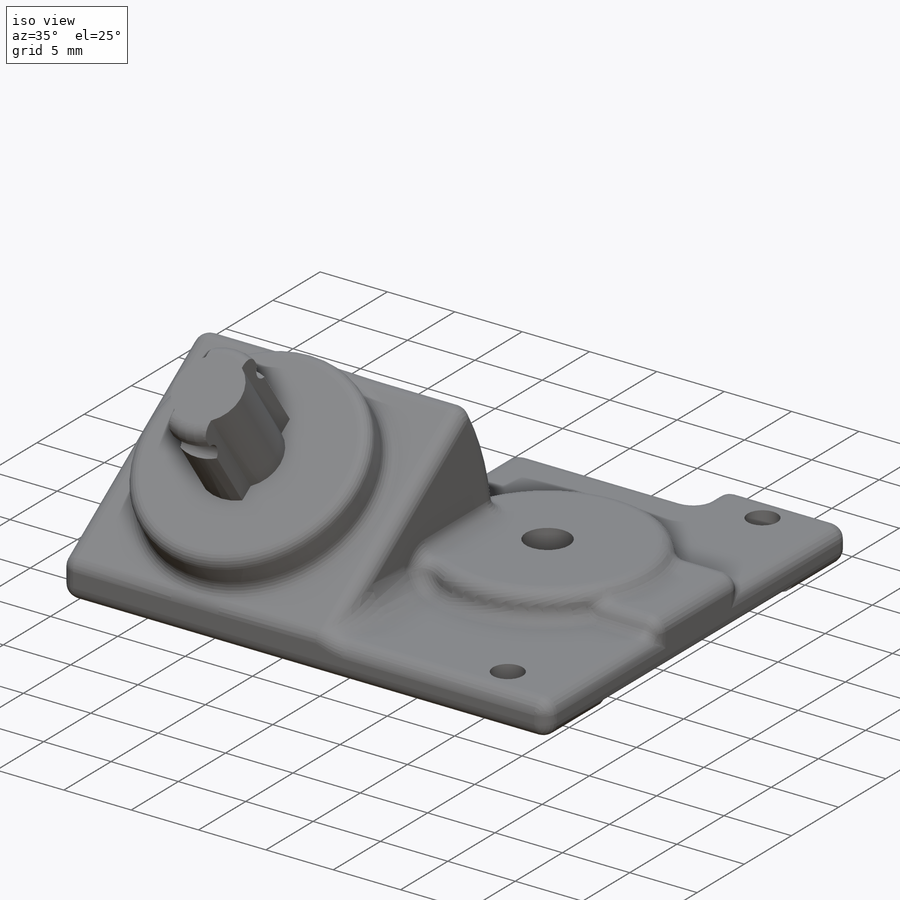
[diagram: iso view]
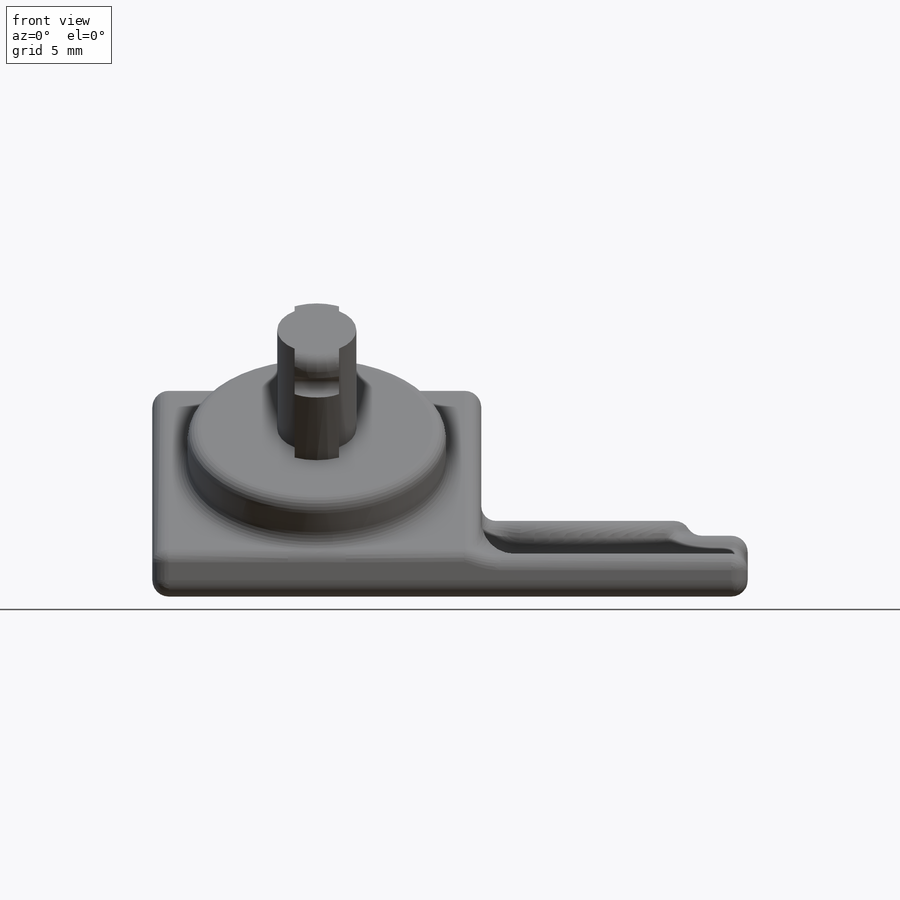
[diagram: front view]
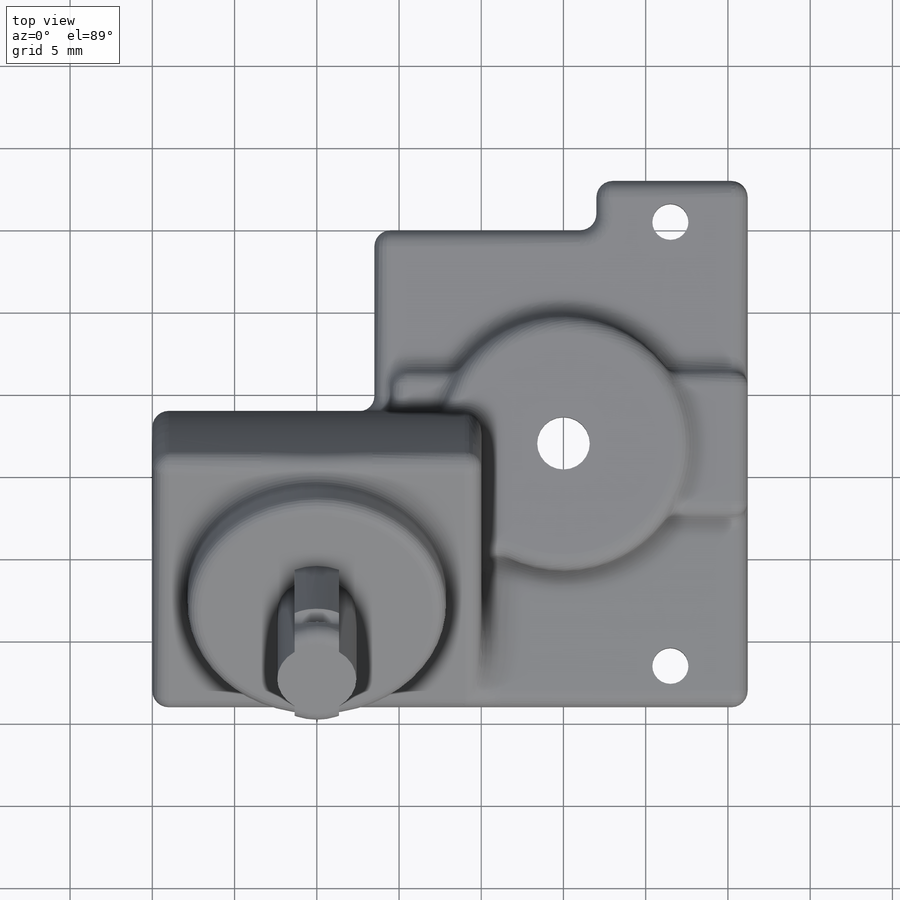
[diagram: top view]
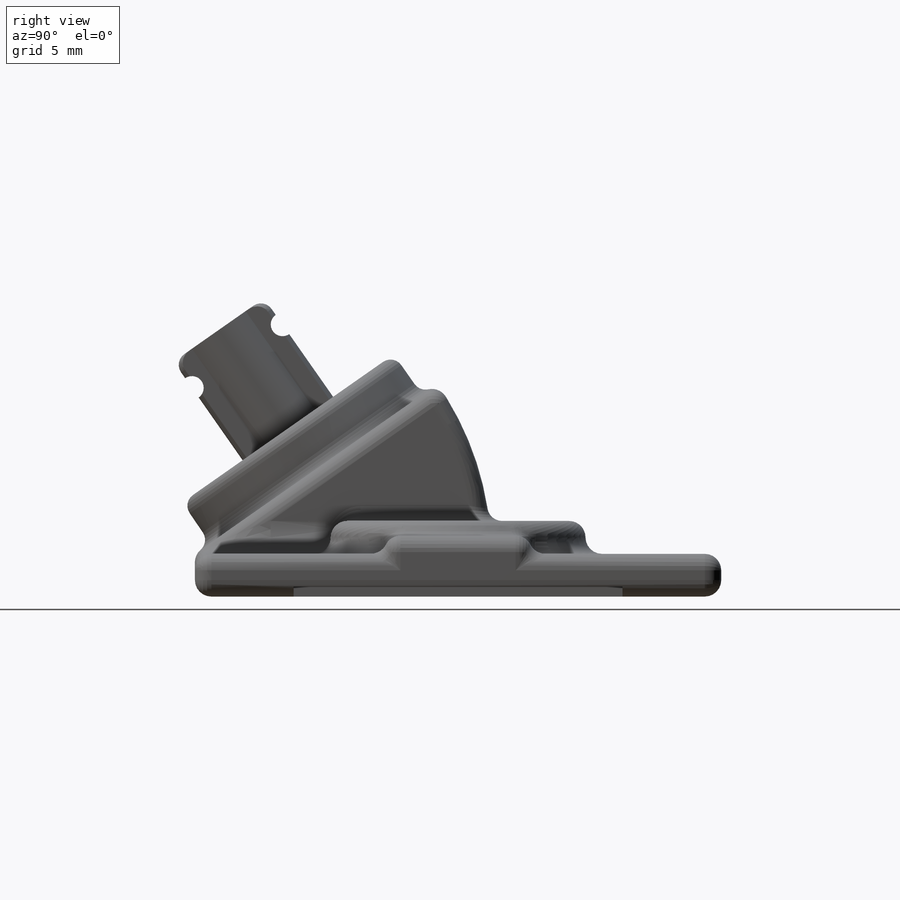
[diagram: right view]
SOLIDWORKS PART (.sldprt)
format: sldprt  version: not decoded by parser v0  size: 1,586,176 bytes
history: native  units: mm
features: sketch x14, fillet x13, extrude x7, cut_extrude x7, material x1 (+16 scaffold rows collapsed)
feature tree (58):
  scaffold x16  (default folders/planes/origin — collapsed)
  material  "Material <not specified>"
  sketch  "Sketch8"  dims[c1.D1=18.0mm c1.D2=30.0mm c2.D2=35.0deg]
  extrude  "Boss-Extrude4"  Depth=10mm
  sketch  "Sketch3"  dims[D1=15.72mm D2=9.0mm]
  extrude  "Boss-Extrude2"  Depth=3mm
  sketch  "Sketch5"  dims[c1.D1=4.81mm c1.D3=6.72mm c1.D2=2.7mm c2.D3=6.72mm]
  extrude  "Boss-Extrude3"  Depth=7.32mm
  sketch  "Sketch6"  dims[c1.D1=5.29mm c1.D2=5.37mm c2.D1=5.29mm c2.D2=5.37mm]
  cut_extrude  "Cut-Extrude2"  [1 undecoded]
  fillet  "Fillet5"  Radius=0.8mm
  sketch  "Sketch10"  dims[D1=26.2mm D2=32.0mm]
  extrude  "Boss-Extrude5"  Depth=2.6mm
  sketch  "Sketch15"  dims[D1=6.0mm D2=6.0mm D3=19.7mm]
  cut_extrude  "Cut-Extrude4"  Depth=0.6mm
  sketch  "Sketch16"  dims[D1=15.5mm D2=15.0mm]
  extrude  "Boss-Extrude8"  Depth=2mm
  sketch  "Sketch18"  dims[D1=9.0mm D2=22.0mm D3=2.0mm]
  extrude  "Boss-Extrude9"  Depth=1.1mm
  sketch  "Sketch19"  dims[D1=11.7mm]
  cut_extrude  "Cut-Extrude5"  Depth=2.4mm
  sketch  "Sketch20"  dims[D1=18.2mm D2=6.2mm]
  cut_extrude  "Cut-Extrude6"  Depth=1.1mm
  sketch  "Sketch21"  dims[D1=13.5mm D2=3.0mm D3=27.0mm]
  cut_extrude  "Cut-Extrude7"  [1 undecoded]
  sketch  "Sketch22"  dims[D1=2.2mm D2=4.7mm D3=2.5mm D4=2.5mm D5=8.0mm]
  sketch  "Sketch23"  dims[D1=7.8mm]
  extrude  "Boss-Extrude10"  Depth=0.6mm
  cut_extrude  "Cut-Extrude8"  [1 undecoded]
  sketch  "Sketch24"  dims[D1=3.2mm]
  cut_extrude  "Cut-Extrude9"  [1 undecoded]
  fillet  "Fillet6"  Radius=0.8mm
  fillet  "Fillet7"  Radius=1mm
  fillet  "Fillet8"  Radius=2mm
  fillet  "Fillet9"  Radius=1mm
  fillet  "Fillet10"  Radius=1mm
  fillet  "Fillet11"  Radius=1mm
  fillet  "Fillet12"  Radius=1mm
  fillet  "Fillet13"  Radius=1mm
  fillet  "Fillet14"  Radius=1mm
  fillet  "Fillet15"  Radius=0.9mm
  fillet  "Fillet16"  Radius=1mm
  fillet  "Fillet17"  Radius=1mm
decode coverage: 37 of 41 modeling features carry decoded parameters
note: 4 parameter values undecoded
summary: no parameter record found for 4 features
note: suppression state not decoded; provenance and decode notes live in map.json
